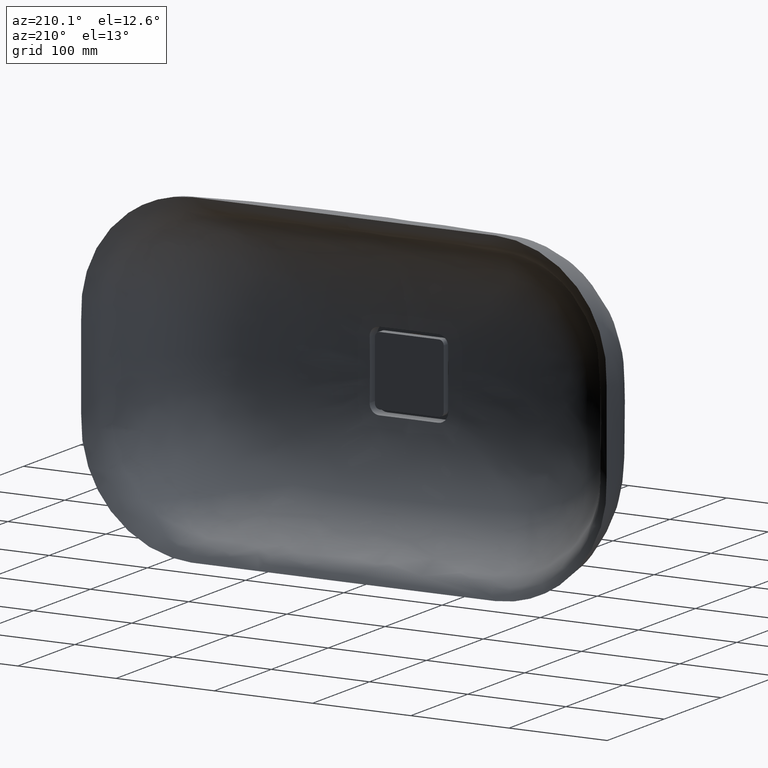
[diagram: clean part render]
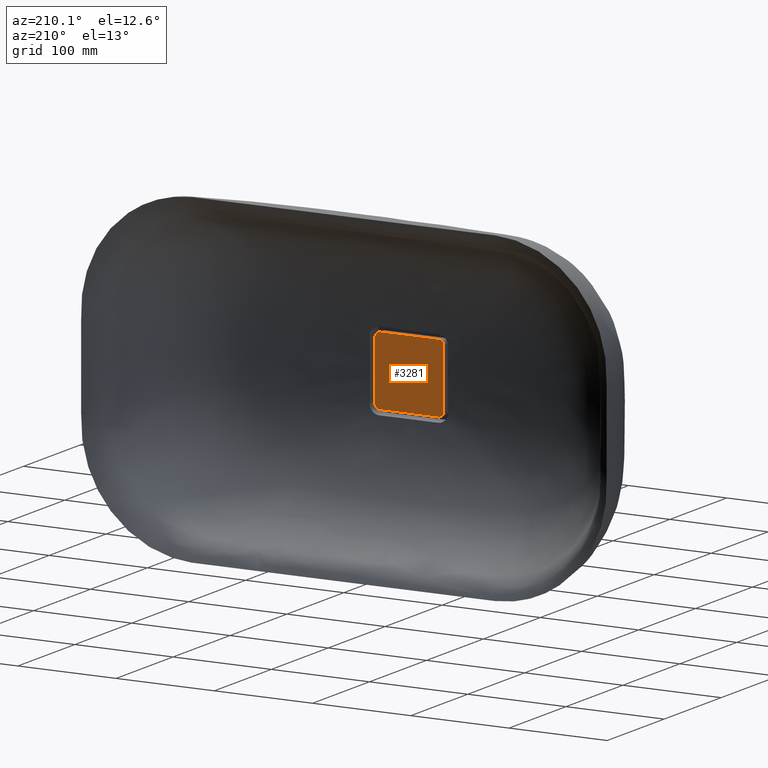
[diagram: same view with one face highlighted and labeled with its STEP entity id]
A machine part, auxiliary view. The second image highlights one B-rep face of the part: STEP entity #3281.
In plain terms, the highlighted planar face has unit normal (0, 1, 0).
Its self-contained STEP definition (entity closure, byte-faithful):
#59 = DIRECTION ( 'NONE',  ( 0.0000000000000000000, 1.000000000000000000, 0.0000000000000000000 ) ) ;
#72 = EDGE_CURVE ( 'NONE', #6376, #7331, #1628, .T. ) ;
#89 = AXIS2_PLACEMENT_3D ( 'NONE', #3150, #7548, #3791 ) ;
#120 = CARTESIAN_POINT ( 'NONE',  ( 29.99999999999997500, -115.0000000000000000, -35.00000000000000000 ) ) ;
#161 = LINE ( 'NONE', #3117, #1848 ) ;
#545 = CARTESIAN_POINT ( 'NONE',  ( 29.99999999999997200, -115.0000000000000000, -35.00000000000000000 ) ) ;
#586 = CARTESIAN_POINT ( 'NONE',  ( 35.00000000000000700, -115.0000000000000000, 29.99999999999992900 ) ) ;
#625 = DIRECTION ( 'NONE',  ( 0.0000000000000000000, 0.0000000000000000000, 1.000000000000000000 ) ) ;
#661 = CARTESIAN_POINT ( 'NONE',  ( -29.99999999999992200, -115.0000000000000000, -35.00000000000000000 ) ) ;
#672 = CIRCLE ( 'NONE', #6243, 5.000000000000004400 ) ;
#675 = FACE_OUTER_BOUND ( 'NONE', #1824, .T. ) ;
#767 = VECTOR ( 'NONE', #4275, 1000.000000000000000 ) ;
#844 = EDGE_CURVE ( 'NONE', #2276, #7141, #672, .T. ) ;
#952 = LINE ( 'NONE', #1115, #2607 ) ;
#967 = AXIS2_PLACEMENT_3D ( 'NONE', #1949, #59, #7583 ) ;
#1115 = CARTESIAN_POINT ( 'NONE',  ( 35.00000000000000700, -115.0000000000000000, 29.99999999999992900 ) ) ;
#1296 = ORIENTED_EDGE ( 'NONE', *, *, #5128, .T. ) ;
#1628 = CIRCLE ( 'NONE', #3730, 5.000000000000004400 ) ;
#1794 = ORIENTED_EDGE ( 'NONE', *, *, #5450, .T. ) ;
#1824 = EDGE_LOOP ( 'NONE', ( #5106, #3919, #6182, #1296, #3414, #1794, #2766, #2541 ) ) ;
#1848 = VECTOR ( 'NONE', #625, 1000.000000000000000 ) ;
#1912 = EDGE_CURVE ( 'NONE', #8051, #7674, #3185, .T. ) ;
#1949 = CARTESIAN_POINT ( 'NONE',  ( -29.99999999999999300, -115.0000000000000000, 30.00000000000000000 ) ) ;
#1975 = CARTESIAN_POINT ( 'NONE',  ( -34.99999999999999300, -115.0000000000000000, -29.99999999999996400 ) ) ;
#2137 = VERTEX_POINT ( 'NONE', #2913 ) ;
#2276 = VERTEX_POINT ( 'NONE', #5434 ) ;
#2299 = DIRECTION ( 'NONE',  ( 0.0000000000000000000, 1.000000000000000000, 0.0000000000000000000 ) ) ;
#2541 = ORIENTED_EDGE ( 'NONE', *, *, #5916, .T. ) ;
#2607 = VECTOR ( 'NONE', #4848, 1000.000000000000000 ) ;
#2766 = ORIENTED_EDGE ( 'NONE', *, *, #1912, .T. ) ;
#2913 = CARTESIAN_POINT ( 'NONE',  ( 35.00000000000000700, -115.0000000000000000, -29.99999999999992900 ) ) ;
#3038 = EDGE_CURVE ( 'NONE', #7141, #6376, #8001, .T. ) ;
#3117 = CARTESIAN_POINT ( 'NONE',  ( -34.99999999999999300, -115.0000000000000000, -29.99999999999996100 ) ) ;
#3150 = CARTESIAN_POINT ( 'NONE',  ( 30.00000000000000700, -115.0000000000000000, -30.00000000000000000 ) ) ;
#3185 = CIRCLE ( 'NONE', #7931, 5.000000000000004400 ) ;
#3281 = ADVANCED_FACE ( 'NONE', ( #675 ), #6944, .T. ) ;
#3289 = CARTESIAN_POINT ( 'NONE',  ( -29.99999999999999300, -115.0000000000000000, 30.00000000000000000 ) ) ;
#3414 = ORIENTED_EDGE ( 'NONE', *, *, #8096, .T. ) ;
#3730 = AXIS2_PLACEMENT_3D ( 'NONE', #6136, #6790, #4303 ) ;
#3744 = CARTESIAN_POINT ( 'NONE',  ( -29.99999999999995400, -115.0000000000000000, 35.00000000000000000 ) ) ;
#3791 = DIRECTION ( 'NONE',  ( 0.0000000000000000000, 0.0000000000000000000, 1.000000000000000000 ) ) ;
#3873 = LINE ( 'NONE', #545, #767 ) ;
#3919 = ORIENTED_EDGE ( 'NONE', *, *, #3038, .T. ) ;
#3924 = DIRECTION ( 'NONE',  ( 0.0000000000000000000, 0.0000000000000000000, 1.000000000000000000 ) ) ;
#4275 = DIRECTION ( 'NONE',  ( -1.000000000000000000, 0.0000000000000000000, 0.0000000000000000000 ) ) ;
#4303 = DIRECTION ( 'NONE',  ( 0.0000000000000000000, 0.0000000000000000000, 1.000000000000000000 ) ) ;
#4372 = DIRECTION ( 'NONE',  ( 1.000000000000000000, 0.0000000000000000000, 0.0000000000000000000 ) ) ;
#4848 = DIRECTION ( 'NONE',  ( 0.0000000000000000000, 0.0000000000000000000, -1.000000000000000000 ) ) ;
#4869 = CIRCLE ( 'NONE', #89, 5.000000000000004400 ) ;
#5106 = ORIENTED_EDGE ( 'NONE', *, *, #844, .T. ) ;
#5128 = EDGE_CURVE ( 'NONE', #7331, #2137, #952, .T. ) ;
#5434 = CARTESIAN_POINT ( 'NONE',  ( -34.99999999999999300, -115.0000000000000000, 30.00000000000000000 ) ) ;
#5450 = EDGE_CURVE ( 'NONE', #6460, #8051, #3873, .T. ) ;
#5538 = VECTOR ( 'NONE', #4372, 1000.000000000000000 ) ;
#5664 = CARTESIAN_POINT ( 'NONE',  ( 29.99999999999993600, -115.0000000000000000, 35.00000000000000000 ) ) ;
#5916 = EDGE_CURVE ( 'NONE', #7674, #2276, #161, .T. ) ;
#6031 = CARTESIAN_POINT ( 'NONE',  ( -29.99999999999999300, -115.0000000000000000, -30.00000000000000000 ) ) ;
#6136 = CARTESIAN_POINT ( 'NONE',  ( 30.00000000000000700, -115.0000000000000000, 30.00000000000000000 ) ) ;
#6182 = ORIENTED_EDGE ( 'NONE', *, *, #72, .T. ) ;
#6243 = AXIS2_PLACEMENT_3D ( 'NONE', #3289, #7681, #3924 ) ;
#6376 = VERTEX_POINT ( 'NONE', #5664 ) ;
#6460 = VERTEX_POINT ( 'NONE', #120 ) ;
#6659 = DIRECTION ( 'NONE',  ( 0.0000000000000000000, 0.0000000000000000000, 1.000000000000000000 ) ) ;
#6790 = DIRECTION ( 'NONE',  ( 0.0000000000000000000, 1.000000000000000000, 0.0000000000000000000 ) ) ;
#6944 = PLANE ( 'NONE',  #967 ) ;
#7141 = VERTEX_POINT ( 'NONE', #7995 ) ;
#7331 = VERTEX_POINT ( 'NONE', #586 ) ;
#7548 = DIRECTION ( 'NONE',  ( 0.0000000000000000000, 1.000000000000000000, 0.0000000000000000000 ) ) ;
#7583 = DIRECTION ( 'NONE',  ( 0.0000000000000000000, -0.0000000000000000000, 1.000000000000000000 ) ) ;
#7674 = VERTEX_POINT ( 'NONE', #1975 ) ;
#7681 = DIRECTION ( 'NONE',  ( 0.0000000000000000000, 1.000000000000000000, 0.0000000000000000000 ) ) ;
#7931 = AXIS2_PLACEMENT_3D ( 'NONE', #6031, #2299, #6659 ) ;
#7995 = CARTESIAN_POINT ( 'NONE',  ( -29.99999999999995400, -115.0000000000000000, 35.00000000000000000 ) ) ;
#8001 = LINE ( 'NONE', #3744, #5538 ) ;
#8051 = VERTEX_POINT ( 'NONE', #661 ) ;
#8096 = EDGE_CURVE ( 'NONE', #2137, #6460, #4869, .T. ) ;